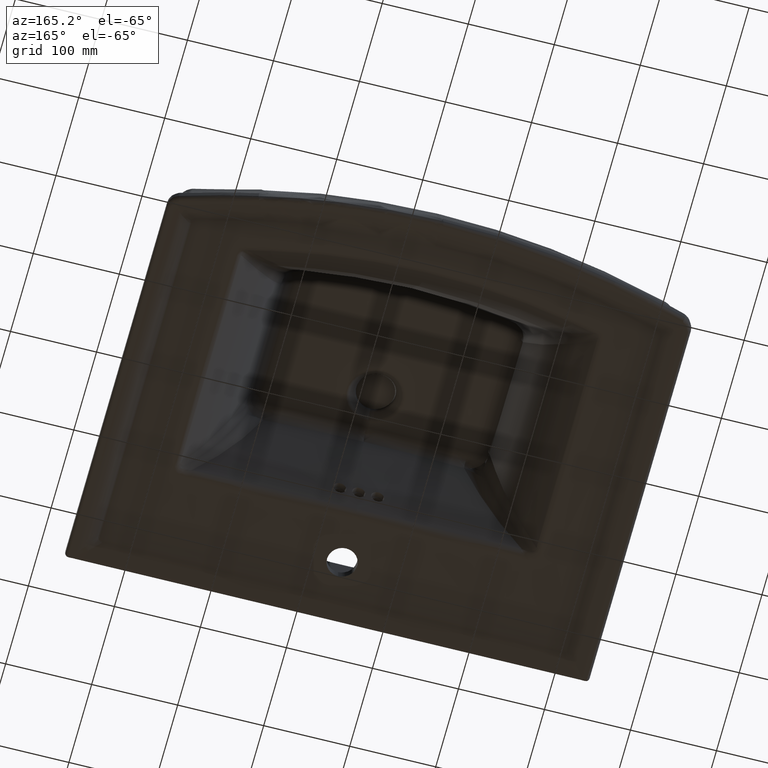
[diagram: clean part render]
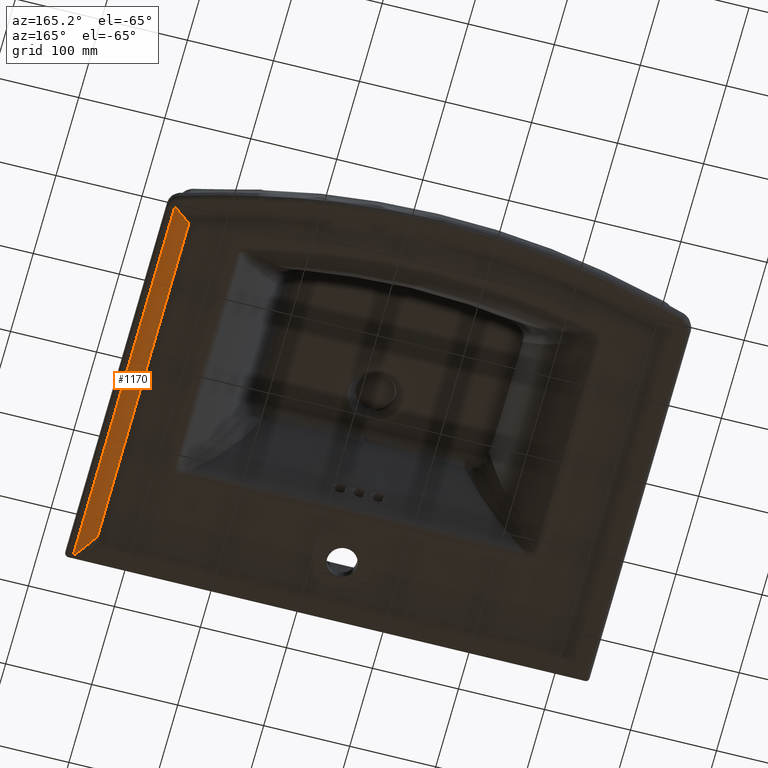
[diagram: same view with one face highlighted and labeled with its STEP entity id]
A machine part, auxiliary view. The second image highlights one B-rep face of the part: STEP entity #1170.
In plain terms, the highlighted face is a SurfaceOfExtrusion surface.
Its self-contained STEP definition (entity closure, byte-faithful):
#104=SURFACE_OF_LINEAR_EXTRUSION('',#7096,#2484);
#1170=ADVANCED_FACE('',(#1695),#104,.T.);
#1695=FACE_OUTER_BOUND('',#2171,.T.);
#2171=EDGE_LOOP('',(#4074,#4075,#4076,#4077));
#2484=VECTOR('',#8297,1.);
#4074=ORIENTED_EDGE('',*,*,#6273,.T.);
#4075=ORIENTED_EDGE('',*,*,#6274,.T.);
#4076=ORIENTED_EDGE('',*,*,#6275,.F.);
#4077=ORIENTED_EDGE('',*,*,#6276,.T.);
#5291=VERTEX_POINT('',#23893);
#5292=VERTEX_POINT('',#23894);
#5293=VERTEX_POINT('',#23899);
#5294=VERTEX_POINT('',#23941);
#6273=EDGE_CURVE('',#5291,#5292,#7092,.T.);
#6274=EDGE_CURVE('',#5292,#5293,#7093,.T.);
#6275=EDGE_CURVE('',#5294,#5293,#7094,.T.);
#6276=EDGE_CURVE('',#5294,#5291,#7095,.T.);
#7092=B_SPLINE_CURVE_WITH_KNOTS('',3,(#23875,#23876,#23877,#23878,#23879,
#23880,#23881,#23882,#23883,#23884,#23885,#23886,#23887,#23888,#23889,#23890,
#23891,#23892),.UNSPECIFIED.,.F.,.F.,(4,2,1,2,2,2,1,2,2,4),(0.,0.124999999999996,
0.187499999999994,0.218749999999994,0.249999999999994,0.374999999999992,
0.437499999999989,0.468749999999984,0.49999999999998,1.),.UNSPECIFIED.);
#7093=B_SPLINE_CURVE_WITH_KNOTS('',3,(#23895,#23896,#23897,#23898),
 .UNSPECIFIED.,.F.,.F.,(4,4),(0.,1.),.UNSPECIFIED.);
#7094=B_SPLINE_CURVE_WITH_KNOTS('',3,(#23900,#23901,#23902,#23903,#23904,
#23905,#23906,#23907,#23908,#23909,#23910,#23911,#23912,#23913,#23914,#23915,
#23916,#23917,#23918,#23919,#23920,#23921,#23922,#23923,#23924,#23925,#23926,
#23927,#23928,#23929,#23930,#23931,#23932,#23933,#23934,#23935,#23936,#23937,
#23938,#23939,#23940),.UNSPECIFIED.,.F.,.F.,(4,2,2,2,2,1,2,2,2,2,1,2,2,
2,2,1,2,2,2,2,2,4),(0.,0.0156249999999994,0.0312499999999988,0.0624999999999986,
0.124999999999998,0.187499999999998,0.218749999999996,0.249999999999994,
0.374999999999988,0.437499999999985,0.468749999999985,0.484374999999986,
0.499999999999987,0.624999999999988,0.687499999999989,0.718749999999989,
0.73437499999999,0.74999999999999,0.812499999999989,0.843749999999991,0.874999999999993,
1.),.UNSPECIFIED.);
#7095=B_SPLINE_CURVE_WITH_KNOTS('',3,(#23942,#23943,#23944,#23945,#23946,
#23947,#23948,#23949,#23950,#23951,#23952,#23953,#23954,#23955,#23956,#23957,
#23958,#23959,#23960,#23961,#23962,#23963,#23964,#23965,#23966,#23967,#23968,
#23969,#23970,#23971,#23972,#23973,#23974,#23975,#23976,#23977,#23978,#23979,
#23980,#23981,#23982,#23983,#23984),.UNSPECIFIED.,.F.,.F.,(4,1,1,1,1,1,
2,2,1,1,1,2,2,1,2,2,2,1,1,2,2,1,1,1,1,1,1,2,2,4),(0.,0.124999999999999,
0.187499999999998,0.218749999999998,0.234374999999998,0.242187499999998,
0.246093749999998,0.249999999999998,0.312499999999998,0.343749999999998,
0.359374999999998,0.367187499999998,0.374999999999998,0.406249999999998,
0.421874999999998,0.437499999999999,0.468749999999999,0.484374999999999,
0.492187499999999,0.496093749999999,0.499999999999999,0.624999999999999,
0.6875,0.71875,0.734375,0.7421875,0.74609375,0.748046875,0.75,1.),
 .UNSPECIFIED.);
#7096=B_SPLINE_CURVE_WITH_KNOTS('',3,(#23985,#23986,#23987,#23988),
 .UNSPECIFIED.,.F.,.F.,(4,4),(0.,1.),.UNSPECIFIED.);
#8297=DIRECTION('',(0.,1.04083408558608E-017,-1.));
#23875=CARTESIAN_POINT('',(282.883344509392,155.522903994183,221.489257028439));
#23876=CARTESIAN_POINT('',(283.822785758671,156.124839390682,222.319941702083));
#23877=CARTESIAN_POINT('',(284.771385930273,156.699320895048,223.162833947261));
#23878=CARTESIAN_POINT('',(286.208609678313,157.51805969656,224.445483672331));
#23879=CARTESIAN_POINT('',(286.930801791652,157.916684937436,225.091386374191));
#23880=CARTESIAN_POINT('',(287.658468295137,158.298871221401,225.74415583504));
#23881=CARTESIAN_POINT('',(288.144806999284,158.549974163477,226.180861422047));
#23882=CARTESIAN_POINT('',(288.410157010412,158.684433693204,226.419379922526));
#23883=CARTESIAN_POINT('',(289.524336113231,159.239904511724,227.421759953487));
#23884=CARTESIAN_POINT('',(290.428141122797,159.661633243431,228.237721132638));
#23885=CARTESIAN_POINT('',(291.803423906613,160.258000688611,229.48274863294));
#23886=CARTESIAN_POINT('',(292.49595931613,160.547127472049,230.110533815984));
#23887=CARTESIAN_POINT('',(293.196003070374,160.822241494167,230.746226148368));
#23888=CARTESIAN_POINT('',(293.664386144497,161.002489080672,231.171778180923));
#23889=CARTESIAN_POINT('',(293.939345305919,161.105746260106,231.421742454744));
#23890=CARTESIAN_POINT('',(297.270735548876,162.333551664293,234.451541532801));
#23891=CARTESIAN_POINT('',(300.658573219868,163.245768187619,237.552522064973));
#23892=CARTESIAN_POINT('',(304.353099901287,163.787628029544,240.902907526439));
#23893=CARTESIAN_POINT('',(282.883498212861,155.522664109005,221.489257028439));
#23894=CARTESIAN_POINT('',(304.353104820661,163.787594488105,240.902907526439));
#23895=CARTESIAN_POINT('',(304.353099901279,163.787628029543,240.902907526439));
#23896=CARTESIAN_POINT('',(304.353130202326,163.787632473663,91.532508958839));
#23897=CARTESIAN_POINT('',(304.353160503384,163.787636917757,-57.8378896087614));
#23898=CARTESIAN_POINT('',(304.353190804455,163.787641361824,-207.208288176362));
#23899=CARTESIAN_POINT('',(304.353194089461,163.787618963605,-207.208288176362));
#23900=CARTESIAN_POINT('',(282.881277912875,155.521206519355,-181.003934497081));
#23901=CARTESIAN_POINT('',(282.882664156989,155.522094642316,-181.005103332456));
#23902=CARTESIAN_POINT('',(282.975716601506,155.582027238037,-181.11502411551));
#23903=CARTESIAN_POINT('',(283.346159578461,155.816756636744,-181.552992625155));
#23904=CARTESIAN_POINT('',(283.413788134926,155.858949389736,-181.632996406567));
#23905=CARTESIAN_POINT('',(283.731893479692,156.057658865406,-182.009549044313));
#23906=CARTESIAN_POINT('',(283.948460565349,156.191204933494,-182.266271860914));
#23907=CARTESIAN_POINT('',(284.583511303983,156.577755607974,-183.020114835266));
#23908=CARTESIAN_POINT('',(285.024240204227,156.838948971951,-183.544744605902));
#23909=CARTESIAN_POINT('',(285.868639053954,157.325982700288,-184.552543514886));
#23910=CARTESIAN_POINT('',(286.509767110296,157.685859902749,-185.319701898435));
#23911=CARTESIAN_POINT('',(287.162642184738,158.036626027671,-186.103892674358));
#23912=CARTESIAN_POINT('',(287.600502744549,158.268329972224,-186.630476973915));
#23913=CARTESIAN_POINT('',(287.839510815173,158.392742591404,-186.918296201151));
#23914=CARTESIAN_POINT('',(288.85335234632,158.912858942535,-188.140562562752));
#23915=CARTESIAN_POINT('',(289.699431485491,159.32280847128,-189.165206991829));
#23916=CARTESIAN_POINT('',(291.021650895071,159.920101147975,-190.773317141576));
#23917=CARTESIAN_POINT('',(291.471238537823,160.116254641375,-191.321211065541));
#23918=CARTESIAN_POINT('',(292.158948787927,160.404968115898,-192.160945022766));
#23919=CARTESIAN_POINT('',(292.506135943361,160.547945181847,-192.585285189401));
#23920=CARTESIAN_POINT('',(292.858330276857,160.688642303863,-193.016354279413));
#23921=CARTESIAN_POINT('',(293.094240106918,160.781910090876,-193.305231026549));
#23922=CARTESIAN_POINT('',(293.232638649182,160.835977064553,-193.474792336071));
#23923=CARTESIAN_POINT('',(294.125277955339,161.181519010894,-194.568854637528));
#23924=CARTESIAN_POINT('',(294.973913539987,161.488231756364,-195.612027346295));
#23925=CARTESIAN_POINT('',(296.331014570094,161.934516517127,-197.284154955064));
#23926=CARTESIAN_POINT('',(296.797404946725,162.080963958083,-197.859425052179));
#23927=CARTESIAN_POINT('',(297.518171520431,162.295380835525,-198.749316273962));
#23928=CARTESIAN_POINT('',(297.883848443608,162.401274785518,-199.201006719037));
#23929=CARTESIAN_POINT('',(298.257479154736,162.504855109069,-199.662828902765));
#23930=CARTESIAN_POINT('',(298.50833490487,162.57335582336,-199.972963265416));
#23931=CARTESIAN_POINT('',(298.663867137106,162.615066427151,-200.165297059739));
#23932=CARTESIAN_POINT('',(299.153751947639,162.744773954656,-200.771200181078));
#23933=CARTESIAN_POINT('',(299.580659359318,162.852809717854,-201.299512646921));
#23934=CARTESIAN_POINT('',(300.273918620108,163.017117466156,-202.157714610121));
#23935=CARTESIAN_POINT('',(300.513821171684,163.072255692415,-202.454737468351));
#23936=CARTESIAN_POINT('',(301.011319574275,163.182499742456,-203.070750780503));
#23937=CARTESIAN_POINT('',(301.301044246531,163.244198264399,-203.429530107422));
#23938=CARTESIAN_POINT('',(302.472750341493,163.484630348326,-204.880592653505));
#23939=CARTESIAN_POINT('',(303.412297636251,163.649571896284,-206.043612186327));
#23940=CARTESIAN_POINT('',(304.353197799053,163.78759367261,-207.208288176665));
#23941=CARTESIAN_POINT('',(282.881276408161,155.521389007805,-181.003819084362));
#23942=CARTESIAN_POINT('',(282.881190178645,155.521523574922,-181.003819084362));
#23943=CARTESIAN_POINT('',(282.853578875634,155.503830476029,-164.555201225832));
#23944=CARTESIAN_POINT('',(282.818172602414,155.481100168188,-139.429862693299));
#23945=CARTESIAN_POINT('',(282.787362901423,155.46129030267,-109.325247185387));
#23946=CARTESIAN_POINT('',(282.774580630195,155.453066253275,-94.0750092931076));
#23947=CARTESIAN_POINT('',(282.768844933503,155.449374864219,-86.4004078123873));
#23948=CARTESIAN_POINT('',(282.766140921886,155.447634374934,-82.5507364383819));
#23949=CARTESIAN_POINT('',(282.765017165316,155.446910999605,-80.8982264280271));
#23950=CARTESIAN_POINT('',(282.764275795255,155.446433760698,-79.7959640099979));
#23951=CARTESIAN_POINT('',(282.763886929039,155.446183431749,-79.2109658154407));
#23952=CARTESIAN_POINT('',(282.758093286683,155.442453755179,-70.4024525327062));
#23953=CARTESIAN_POINT('',(282.751219494802,155.438027087152,-57.8431829942817));
#23954=CARTESIAN_POINT('',(282.745483750383,155.434332258402,-42.9741894606326));
#23955=CARTESIAN_POINT('',(282.743186725014,155.432852395387,-35.4855645924364));
#23956=CARTESIAN_POINT('',(282.742324602976,155.432296943319,-32.2645550557727));
#23957=CARTESIAN_POINT('',(282.74177703593,155.431944148822,-30.1146378360268));
#23958=CARTESIAN_POINT('',(282.741508638946,155.431771219106,-29.0025431549582));
#23959=CARTESIAN_POINT('',(282.740316644401,155.431003200014,-23.7940989967955));
#23960=CARTESIAN_POINT('',(282.739190235566,155.430277389534,-17.5114778956507));
#23961=CARTESIAN_POINT('',(282.738519774576,155.42984535627,-11.1801246274811));
#23962=CARTESIAN_POINT('',(282.738174120735,155.429622621123,-6.94839307825146));
#23963=CARTESIAN_POINT('',(282.738050904715,155.429543221172,-4.79591137512645));
#23964=CARTESIAN_POINT('',(282.737839529699,155.429407011721,1.49057033021203));
#23965=CARTESIAN_POINT('',(282.737897978867,155.429444676882,5.73117569410649));
#23966=CARTESIAN_POINT('',(282.738269140249,155.429683850663,11.9895834811536));
#23967=CARTESIAN_POINT('',(282.738526327932,155.429849579857,15.1274739436834));
#23968=CARTESIAN_POINT('',(282.738951694307,155.430123675908,18.803547645729));
#23969=CARTESIAN_POINT('',(282.739160847495,155.430258447618,20.3822652671258));
#23970=CARTESIAN_POINT('',(282.739306250391,155.430352140236,21.4354675621409));
#23971=CARTESIAN_POINT('',(282.739386816426,155.430404053987,21.995147563728));
#23972=CARTESIAN_POINT('',(282.74182182166,155.431973073568,38.3172153440057));
#23973=CARTESIAN_POINT('',(282.749459992716,155.436894911197,62.6952377777583));
#23974=CARTESIAN_POINT('',(282.765542939699,155.447250073132,92.2507215870115));
#23975=CARTESIAN_POINT('',(282.77537811911,155.45357935964,107.307077900774));
#23976=CARTESIAN_POINT('',(282.780744241925,155.457031714488,114.904909659938));
#23977=CARTESIAN_POINT('',(282.783539451216,155.458829790386,118.721238940092));
#23978=CARTESIAN_POINT('',(282.784965094738,155.459746799115,120.633756930311));
#23979=CARTESIAN_POINT('',(282.785582093358,155.460143653317,121.454340358293));
#23980=CARTESIAN_POINT('',(282.785994761025,155.460409078397,122.001603279335));
#23981=CARTESIAN_POINT('',(282.786226916763,155.460558397411,122.308507582571));
#23982=CARTESIAN_POINT('',(282.809771328892,155.475701637438,153.3548822916));
#23983=CARTESIAN_POINT('',(282.842074802595,155.496460938437,186.334908916427));
#23984=CARTESIAN_POINT('',(282.883344509392,155.522903994182,221.489257028439));
#23985=CARTESIAN_POINT('',(282.737885055661,155.429436348405,248.871745522439));
#23986=CARTESIAN_POINT('',(289.262367849961,159.633809903805,248.871745522439));
#23987=CARTESIAN_POINT('',(296.391817085661,162.620004208105,248.871745522439));
#23988=CARTESIAN_POINT('',(304.353236631761,163.787648083005,248.871745522439));